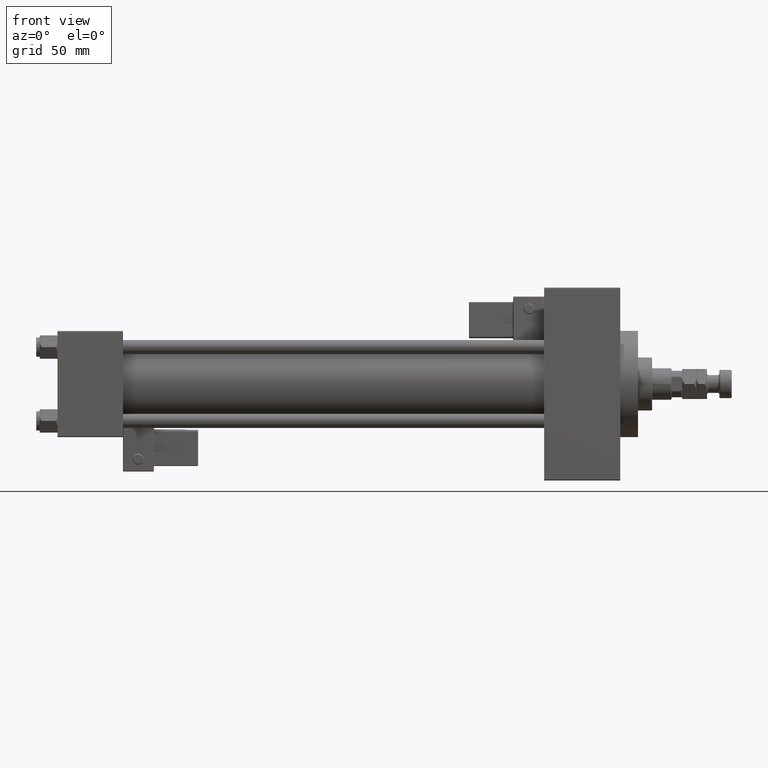
[diagram: clean part render]
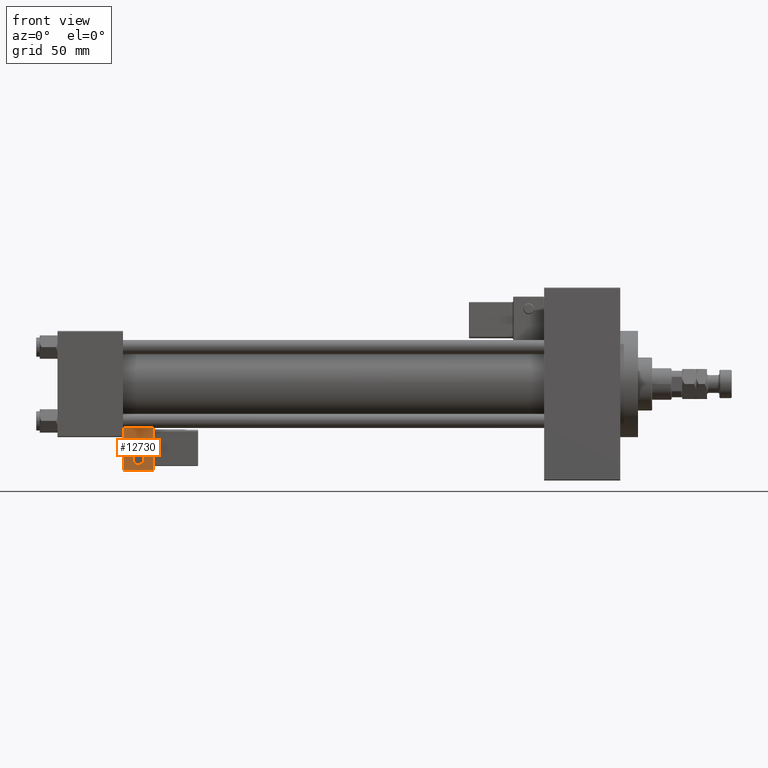
[diagram: same view with one face highlighted and labeled with its STEP entity id]
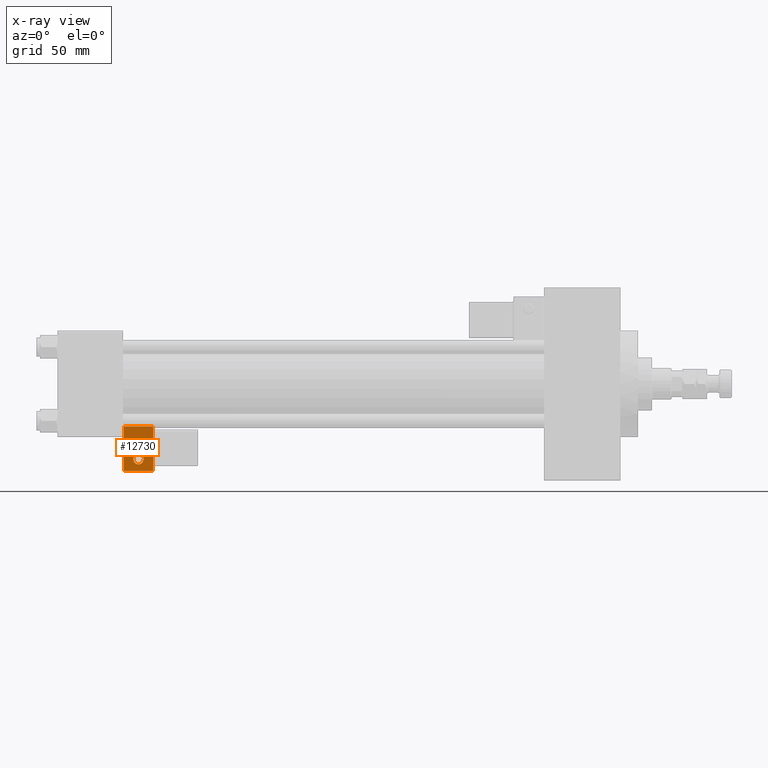
[diagram: x-ray of the same camera — body ghosted, the highlighted face saturated]
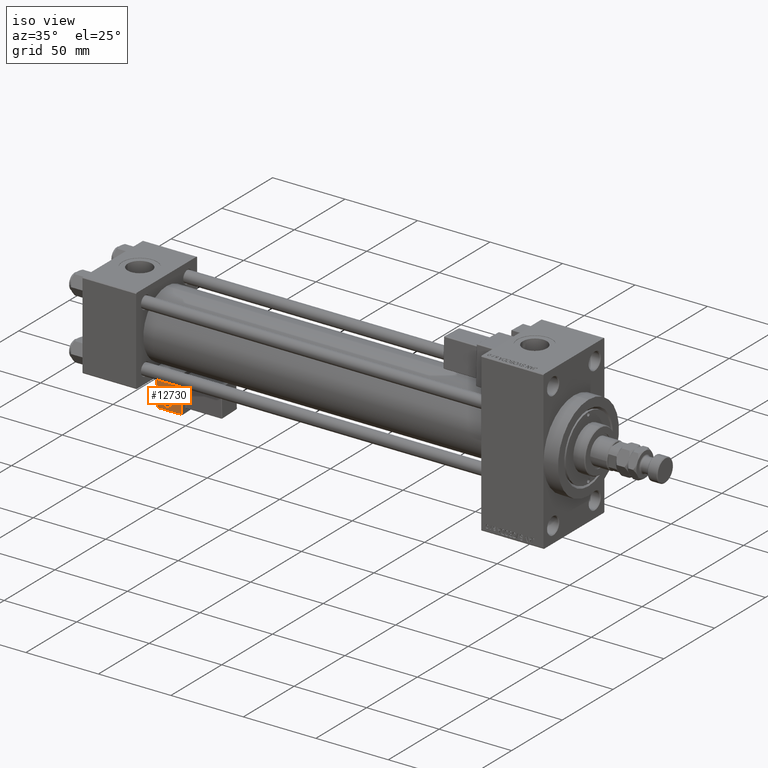
[diagram: same view with one face highlighted and labeled with its STEP entity id]
A machine part, front view. The second image highlights one B-rep face of the part: STEP entity #12730.
The next image is the same camera in x-ray: the body ghosted, the highlighted face saturated — about 0% of this face is hidden behind the body in this view.
A second angle (iso view) of the same face is appended — the face is thin or edge-on in the first view.
In plain terms, the highlighted planar face has unit normal (0, 0.9994, 0.0353).
Its self-contained STEP definition (entity closure, byte-faithful):
#524 = VECTOR ( 'NONE', #52741, 1000.000000000000000 ) ;
#1415 = DIRECTION ( 'NONE',  ( -0.000000000000000000, -1.000000000000000000, -0.000000000000000000 ) ) ;
#3791 = ORIENTED_EDGE ( 'NONE', *, *, #41506, .T. ) ;
#5988 = VECTOR ( 'NONE', #43079, 1000.000000000000000 ) ;
#6448 = ORIENTED_EDGE ( 'NONE', *, *, #18026, .T. ) ;
#7055 = VERTEX_POINT ( 'NONE', #38396 ) ;
#7458 = CARTESIAN_POINT ( 'NONE',  ( -4.336808689942017736E-16, -35.75000000000000000, 9.000000000000001776 ) ) ;
#7532 = VERTEX_POINT ( 'NONE', #7458 ) ;
#7821 = CARTESIAN_POINT ( 'NONE',  ( 0.000000000000000000, -35.75000000000000000, -0.5000000000000002220 ) ) ;
#7950 = CIRCLE ( 'NONE', #11417, 2.999999999999999112 ) ;
#8739 = LINE ( 'NONE', #25220, #51281 ) ;
#9044 = CARTESIAN_POINT ( 'NONE',  ( -4.336808689942017736E-16, -35.75000000000000000, 6.000000000000001776 ) ) ;
#10021 = EDGE_CURVE ( 'NONE', #7532, #25467, #7950, .T. ) ;
#10303 = DIRECTION ( 'NONE',  ( 0.000000000000000000, 0.000000000000000000, 1.000000000000000000 ) ) ;
#11186 = LINE ( 'NONE', #44123, #524 ) ;
#11417 = AXIS2_PLACEMENT_3D ( 'NONE', #30825, #1415, #10303 ) ;
#11549 = PLANE ( 'NONE',  #27922 ) ;
#12223 = AXIS2_PLACEMENT_3D ( 'NONE', #9044, #29298, #37922 ) ;
#12730 = ADVANCED_FACE ( 'NONE', ( #52560, #27761 ), #11549, .F. ) ;
#12928 = EDGE_LOOP ( 'NONE', ( #47737, #36139 ) ) ;
#14480 = CARTESIAN_POINT ( 'NONE',  ( 4.857225732735059864E-15, -35.75000000000000000, 24.50000000000000000 ) ) ;
#15927 = LINE ( 'NONE', #7821, #18577 ) ;
#17633 = VERTEX_POINT ( 'NONE', #22677 ) ;
#18026 = EDGE_CURVE ( 'NONE', #7055, #18048, #11186, .T. ) ;
#18048 = VERTEX_POINT ( 'NONE', #39544 ) ;
#18207 = EDGE_CURVE ( 'NONE', #46230, #17633, #8739, .T. ) ;
#18560 = CARTESIAN_POINT ( 'NONE',  ( -6.628682924999581145E-17, -35.75000000000000000, 3.000000000000001776 ) ) ;
#18577 = VECTOR ( 'NONE', #29151, 1000.000000000000000 ) ;
#19385 = DIRECTION ( 'NONE',  ( 0.000000000000000000, 1.000000000000000000, 0.000000000000000000 ) ) ;
#19794 = EDGE_CURVE ( 'NONE', #18048, #46230, #15927, .T. ) ;
#19906 = CARTESIAN_POINT ( 'NONE',  ( 0.000000000000000000, -35.75000000000000000, 0.000000000000000000 ) ) ;
#22289 = EDGE_LOOP ( 'NONE', ( #3791, #6448, #36735, #46501 ) ) ;
#22586 = LINE ( 'NONE', #14480, #5988 ) ;
#22677 = CARTESIAN_POINT ( 'NONE',  ( 8.250000000000000000, -35.75000000000000000, 24.50000000000000000 ) ) ;
#25220 = CARTESIAN_POINT ( 'NONE',  ( 8.250000000000003553, -35.75000000000000000, 1.100882205908358986E-15 ) ) ;
#25467 = VERTEX_POINT ( 'NONE', #18560 ) ;
#27761 = FACE_BOUND ( 'NONE', #12928, .T. ) ;
#27784 = CIRCLE ( 'NONE', #12223, 2.999999999999999112 ) ;
#27922 = AXIS2_PLACEMENT_3D ( 'NONE', #19906, #19385, #43941 ) ;
#29151 = DIRECTION ( 'NONE',  ( 1.000000000000000000, 0.000000000000000000, 0.000000000000000000 ) ) ;
#29298 = DIRECTION ( 'NONE',  ( -0.000000000000000000, -1.000000000000000000, -0.000000000000000000 ) ) ;
#29528 = DIRECTION ( 'NONE',  ( -1.334402673828313339E-16, 0.000000000000000000, 1.000000000000000000 ) ) ;
#30825 = CARTESIAN_POINT ( 'NONE',  ( -4.336808689942017736E-16, -35.75000000000000000, 6.000000000000001776 ) ) ;
#35353 = CARTESIAN_POINT ( 'NONE',  ( 8.250000000000003553, -35.75000000000000000, -0.5000000000000002220 ) ) ;
#36139 = ORIENTED_EDGE ( 'NONE', *, *, #53097, .F. ) ;
#36735 = ORIENTED_EDGE ( 'NONE', *, *, #19794, .T. ) ;
#37922 = DIRECTION ( 'NONE',  ( 0.000000000000000000, 0.000000000000000000, 1.000000000000000000 ) ) ;
#38396 = CARTESIAN_POINT ( 'NONE',  ( -8.250000000000000000, -35.75000000000000000, 24.50000000000000355 ) ) ;
#39544 = CARTESIAN_POINT ( 'NONE',  ( -8.250000000000003553, -35.75000000000000000, -0.5000000000000002220 ) ) ;
#41506 = EDGE_CURVE ( 'NONE', #17633, #7055, #22586, .T. ) ;
#43079 = DIRECTION ( 'NONE',  ( -1.000000000000000000, 0.000000000000000000, 1.982541115402065110E-16 ) ) ;
#43941 = DIRECTION ( 'NONE',  ( 0.000000000000000000, -0.000000000000000000, 1.000000000000000000 ) ) ;
#44123 = CARTESIAN_POINT ( 'NONE',  ( -8.250000000000003553, -35.75000000000000000, 1.100882205908358788E-15 ) ) ;
#46230 = VERTEX_POINT ( 'NONE', #35353 ) ;
#46501 = ORIENTED_EDGE ( 'NONE', *, *, #18207, .T. ) ;
#47737 = ORIENTED_EDGE ( 'NONE', *, *, #10021, .F. ) ;
#51281 = VECTOR ( 'NONE', #29528, 1000.000000000000000 ) ;
#52560 = FACE_OUTER_BOUND ( 'NONE', #22289, .T. ) ;
#52741 = DIRECTION ( 'NONE',  ( -1.334402673828313093E-16, 0.000000000000000000, -1.000000000000000000 ) ) ;
#53097 = EDGE_CURVE ( 'NONE', #25467, #7532, #27784, .T. ) ;